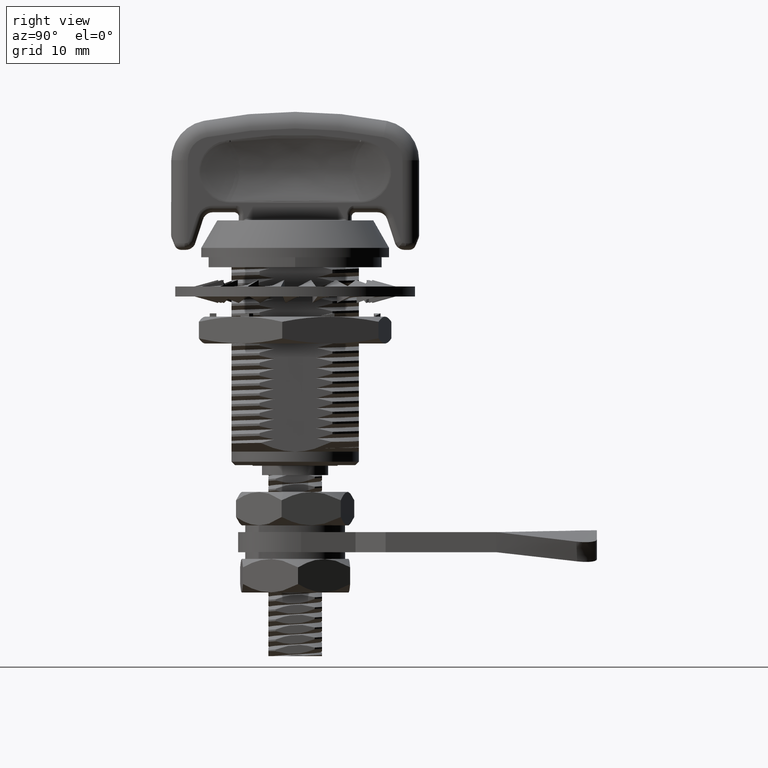
[diagram: clean part render]
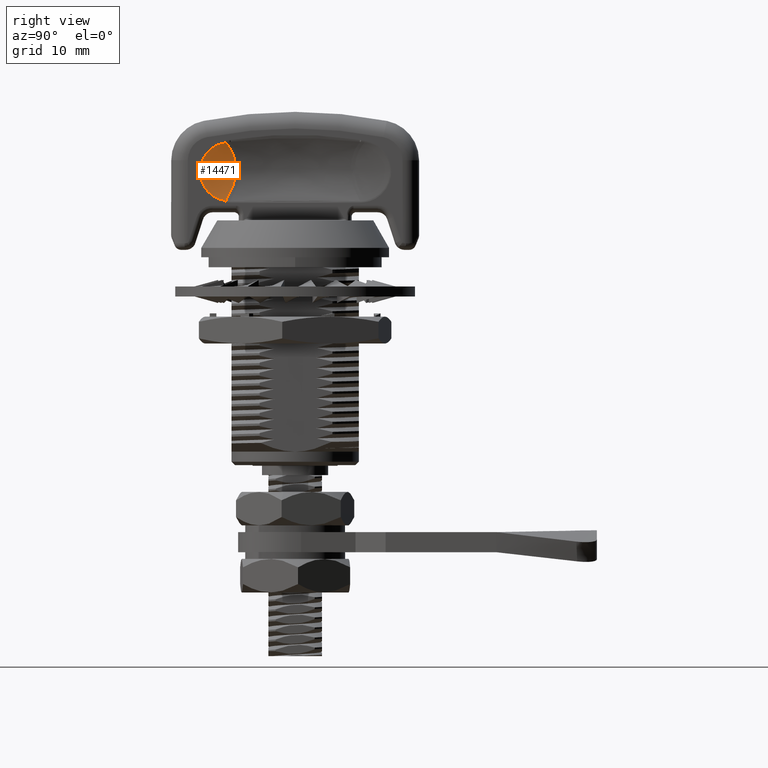
[diagram: same view with one face highlighted and labeled with its STEP entity id]
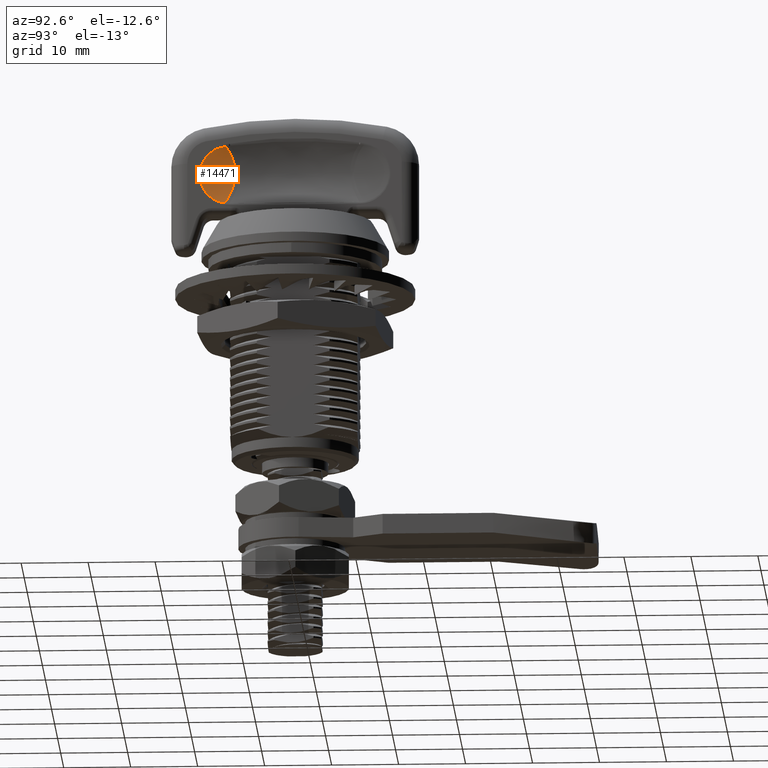
[diagram: same view with one face highlighted and labeled with its STEP entity id]
A machine part, right view. The second image highlights one B-rep face of the part: STEP entity #14471.
A second angle (auxiliary view) of the same face is appended — the face is thin or edge-on in the first view.
In plain terms, the highlighted face is a freeform B-spline surface patch.
Its self-contained STEP definition (entity closure, byte-faithful):
#383=B_SPLINE_SURFACE_WITH_KNOTS('',3,3,((#61968,#61969,#61970,#61971,#61972,
#61973,#61974),(#61975,#61976,#61977,#61978,#61979,#61980,#61981),(#61982,
#61983,#61984,#61985,#61986,#61987,#61988),(#61989,#61990,#61991,#61992,
#61993,#61994,#61995),(#61996,#61997,#61998,#61999,#62000,#62001,#62002)),
 .UNSPECIFIED.,.F.,.F.,.F.,(4,1,4),(4,1,1,1,4),(-0.06344039982555,0.464069123009,
1.075586105328),(0.8083778313412,0.8576923394216,0.9051282262811,0.9525641131405,
0.9986401174064),.UNSPECIFIED.);
#1130=B_SPLINE_CURVE_WITH_KNOTS('',3,(#61812,#61813,#61814,#61815,#61816,
#61817,#61818,#61819,#61820,#61821,#61822,#61823,#61824,#61825,#61826,#61827,
#61828,#61829,#61830,#61831,#61832,#61833,#61834,#61835,#61836,#61837,#61838,
#61839,#61840,#61841,#61842,#61843,#61844,#61845,#61846,#61847,#61848,#61849,
#61850,#61851,#61852,#61853,#61854,#61855,#61856,#61857,#61858,#61859,#61860,
#61861,#61862,#61863,#61864,#61865,#61866,#61867,#61868,#61869,#61870,#61871,
#61872,#61873,#61874,#61875,#61876,#61877,#61878,#61879,#61880,#61881,#61882,
#61883,#61884,#61885,#61886,#61887,#61888,#61889,#61890,#61891,#61892,#61893,
#61894,#61895,#61896,#61897,#61898,#61899,#61900,#61901,#61902,#61903,#61904,
#61905,#61906,#61907,#61908,#61909,#61910,#61911,#61912,#61913,#61914,#61915,
#61916,#61917,#61918,#61919,#61920,#61921,#61922,#61923,#61924,#61925,#61926,
#61927,#61928,#61929,#61930,#61931,#61932,#61933,#61934,#61935,#61936,#61937,
#61938,#61939,#61940,#61941,#61942,#61943,#61944,#61945,#61946,#61947,#61948,
#61949,#61950,#61951,#61952,#61953,#61954,#61955,#61956,#61957,#61958,#61959,
#61960,#61961,#61962,#61963,#61964,#61965,#61966,#61967),.UNSPECIFIED.,
 .F.,.F.,(4,2,2,2,2,2,2,2,2,2,2,2,2,2,2,2,2,2,2,2,2,2,2,2,2,2,2,2,2,2,2,
2,2,2,2,2,2,2,2,2,2,2,2,2,2,2,2,2,2,2,2,2,2,2,2,2,2,2,2,2,2,2,2,2,2,2,2,
2,2,2,2,2,2,2,2,2,2,4),(0.,0.0454689397837129,0.0861078008048689,0.122808244131058,
0.156103353441468,0.186298875036485,0.213702191991193,0.23865316114838,
0.25,0.261424670059077,0.282245431578178,0.301344525589447,0.318922357128044,
0.335095637690876,0.349938551172448,0.36355794037992,0.376064830129451,
0.387538418519536,0.398047168283577,0.407658681172791,0.416425501433452,
0.42437185417443,0.431512215100143,0.43789812548004,0.443640133135429,0.44887575383834,
0.453744619479317,0.458338723825387,0.462630964699474,0.466551825462234,
0.470129972689245,0.473478748656265,0.476718922912879,0.479936080930694,
0.48316751789521,0.486409049838365,0.489654281874576,0.492895062589774,
0.494875592982279,0.496050645598402,0.497942541080052,0.498968878099393,
0.5,0.502102280752797,0.505682055666872,0.509799931291536,0.514519065100934,
0.519849832620355,0.525665271661527,0.531768454791741,0.538055646940328,
0.544535386883235,0.551336988641503,0.558678716414874,0.566807999453519,
0.576006806938041,0.586426155043493,0.597624691975108,0.608867758205821,
0.619882070396659,0.63085219125014,0.642348422442549,0.654993124877327,
0.668919812635162,0.682192528751562,0.684072491976628,0.700592977958545,
0.71866524576158,0.738525978856102,0.75,0.760463093889804,0.784761133354014,
0.811762855759767,0.841762654789106,0.875041737160088,0.912131098246544,
0.953605496027919,1.),.UNSPECIFIED.);
#1131=B_SPLINE_CURVE_WITH_KNOTS('',3,(#62003,#62004,#62005,#62006,#62007,
#62008,#62009),.UNSPECIFIED.,.F.,.F.,(4,3,4),(0.,0.466821804406758,1.),
 .UNSPECIFIED.);
#3774=FACE_OUTER_BOUND('',#4652,.T.);
#4652=EDGE_LOOP('',(#11002,#11003));
#6118=VERTEX_POINT('',#60668);
#6125=VERTEX_POINT('',#61500);
#7891=EDGE_CURVE('',#6125,#6118,#1130,.T.);
#7892=EDGE_CURVE('',#6125,#6118,#1131,.T.);
#11002=ORIENTED_EDGE('',*,*,#7891,.F.);
#11003=ORIENTED_EDGE('',*,*,#7892,.T.);
#14471=ADVANCED_FACE('',(#3774),#383,.T.);
#60668=CARTESIAN_POINT('',(2.440794680745,49.07803024389,10.29761731653));
#61500=CARTESIAN_POINT('',(2.463199448987,40.44198037528,10.35715558005));
#61812=CARTESIAN_POINT('Ctrl Pts',(2.46319944898507,40.4419803752795,10.3571555800501));
#61813=CARTESIAN_POINT('Ctrl Pts',(2.46568179726904,40.4645801271253,10.5459736818584));
#61814=CARTESIAN_POINT('Ctrl Pts',(2.46777263337933,40.5000788655586,10.7338730633001));
#61815=CARTESIAN_POINT('Ctrl Pts',(2.47122486459435,40.590782273944,11.0841020718612));
#61816=CARTESIAN_POINT('Ctrl Pts',(2.47264022867254,40.6434926603211,11.2470270848696));
#61817=CARTESIAN_POINT('Ctrl Pts',(2.4750331559204,40.7619228901347,11.5503269103786));
#61818=CARTESIAN_POINT('Ctrl Pts',(2.47603987856238,40.8258866791158,11.6913567424074));
#61819=CARTESIAN_POINT('Ctrl Pts',(2.47775941524503,40.9621761413044,11.953055718751));
#61820=CARTESIAN_POINT('Ctrl Pts',(2.47849084355857,41.0331750656802,12.0743998284419));
#61821=CARTESIAN_POINT('Ctrl Pts',(2.47975036500777,41.1795857265726,12.2987722992952));
#61822=CARTESIAN_POINT('Ctrl Pts',(2.48029105295589,41.2539712154123,12.4024540871534));
#61823=CARTESIAN_POINT('Ctrl Pts',(2.48123013272681,41.4042745783411,12.5936478533585));
#61824=CARTESIAN_POINT('Ctrl Pts',(2.48163706068153,41.4794146324992,12.681768507331));
#61825=CARTESIAN_POINT('Ctrl Pts',(2.48234698989715,41.6294361011437,12.844121952294));
#61826=CARTESIAN_POINT('Ctrl Pts',(2.48265603334104,41.7037388559464,12.9188918608786));
#61827=CARTESIAN_POINT('Ctrl Pts',(2.48306559646956,41.8156333612743,13.0235267123506));
#61828=CARTESIAN_POINT('Ctrl Pts',(2.48318793783563,41.8511524264803,13.0556477779531));
#61829=CARTESIAN_POINT('Ctrl Pts',(2.48342262362077,41.9234814803366,13.1188979363325));
#61830=CARTESIAN_POINT('Ctrl Pts',(2.48353993002328,41.9602884954351,13.1500458674831));
#61831=CARTESIAN_POINT('Ctrl Pts',(2.48386854693632,42.0656009162862,13.2362593438641));
#61832=CARTESIAN_POINT('Ctrl Pts',(2.484077801996,42.1352799979252,13.2899272986887));
#61833=CARTESIAN_POINT('Ctrl Pts',(2.4844682125353,42.2718554438086,13.3888134751126));
#61834=CARTESIAN_POINT('Ctrl Pts',(2.48465026610974,42.3385054643573,13.4343633685214));
#61835=CARTESIAN_POINT('Ctrl Pts',(2.48498632810036,42.4688307336696,13.518304515741));
#61836=CARTESIAN_POINT('Ctrl Pts',(2.48514141916923,42.5323200694194,13.5569769335652));
#61837=CARTESIAN_POINT('Ctrl Pts',(2.48542418399634,42.6560594524653,13.6281236868693));
#61838=CARTESIAN_POINT('Ctrl Pts',(2.48555306104334,42.7161629597237,13.6608463339922));
#61839=CARTESIAN_POINT('Ctrl Pts',(2.485784553901,42.8328627848206,13.720876851659));
#61840=CARTESIAN_POINT('Ctrl Pts',(2.48588845991489,42.8893409108713,13.7484086975019));
#61841=CARTESIAN_POINT('Ctrl Pts',(2.486072134387,42.9987610894734,13.798834486528));
#61842=CARTESIAN_POINT('Ctrl Pts',(2.48615318777997,43.0516108494284,13.8219236480882));
#61843=CARTESIAN_POINT('Ctrl Pts',(2.48629331536107,43.1538617311123,13.8641597047071));
#61844=CARTESIAN_POINT('Ctrl Pts',(2.48635364533251,43.2031919166628,13.8834745561762));
#61845=CARTESIAN_POINT('Ctrl Pts',(2.48645514873709,43.2984548607743,13.9187325998432));
#61846=CARTESIAN_POINT('Ctrl Pts',(2.48649749381401,43.3443315853813,13.9348225066047));
#61847=CARTESIAN_POINT('Ctrl Pts',(2.48656656520335,43.4327521964525,13.964143703402));
#61848=CARTESIAN_POINT('Ctrl Pts',(2.48659430552526,43.4752519224248,13.9775015966953));
#61849=CARTESIAN_POINT('Ctrl Pts',(2.48663624035692,43.5570204176844,14.0017980069744));
#61850=CARTESIAN_POINT('Ctrl Pts',(2.48665138938787,43.5962552312145,14.0128457130568));
#61851=CARTESIAN_POINT('Ctrl Pts',(2.48667030810227,43.6715780460385,14.0328906108795));
#61852=CARTESIAN_POINT('Ctrl Pts',(2.4866749609127,43.7076395674183,14.0419826808835));
#61853=CARTESIAN_POINT('Ctrl Pts',(2.4866748258029,43.7766135907561,14.0584113909834));
#61854=CARTESIAN_POINT('Ctrl Pts',(2.48667088068935,43.8095049493615,14.0658326828321));
#61855=CARTESIAN_POINT('Ctrl Pts',(2.48665545262526,43.8721185066106,14.0791756521848));
#61856=CARTESIAN_POINT('Ctrl Pts',(2.48664477480714,43.9018237669268,14.0851730847081));
#61857=CARTESIAN_POINT('Ctrl Pts',(2.48661765979449,43.9582171321075,14.0959274034088));
#61858=CARTESIAN_POINT('Ctrl Pts',(2.48660195032113,43.9848923980388,14.1007484100366));
#61859=CARTESIAN_POINT('Ctrl Pts',(2.4865661669688,44.0356412750535,14.1094137791253));
#61860=CARTESIAN_POINT('Ctrl Pts',(2.48654669286354,44.0597060062804,14.113307602903));
#61861=CARTESIAN_POINT('Ctrl Pts',(2.48650423901523,44.1057780100976,14.1203495328392));
#61862=CARTESIAN_POINT('Ctrl Pts',(2.48648171988934,44.1277795669617,14.1235331196889));
#61863=CARTESIAN_POINT('Ctrl Pts',(2.48643351090529,44.1702906382474,14.1293370178209));
#61864=CARTESIAN_POINT('Ctrl Pts',(2.48640815366984,44.1907967083367,14.1319811646772));
#61865=CARTESIAN_POINT('Ctrl Pts',(2.48635435834831,44.2306902896325,14.1368215149649));
#61866=CARTESIAN_POINT('Ctrl Pts',(2.4863261749001,44.2500756197536,14.1390345763095));
#61867=CARTESIAN_POINT('Ctrl Pts',(2.48626724988637,44.2876033904511,14.1430482552572));
#61868=CARTESIAN_POINT('Ctrl Pts',(2.48623679811197,44.3057438033106,14.1448664185793));
#61869=CARTESIAN_POINT('Ctrl Pts',(2.48617427335994,44.340479138286,14.1481125596168));
#61870=CARTESIAN_POINT('Ctrl Pts',(2.48614256864627,44.3570719764128,14.1495606862328));
#61871=CARTESIAN_POINT('Ctrl Pts',(2.4860779139012,44.3888257036126,14.1521339665252));
#61872=CARTESIAN_POINT('Ctrl Pts',(2.48604531497149,44.4039849847547,14.1532762866982));
#61873=CARTESIAN_POINT('Ctrl Pts',(2.48597832037566,44.4333462989199,14.1553199961399));
#61874=CARTESIAN_POINT('Ctrl Pts',(2.48594417387841,44.4475474013185,14.1562321358264));
#61875=CARTESIAN_POINT('Ctrl Pts',(2.48587296362596,44.4755017249288,14.1578753411269));
#61876=CARTESIAN_POINT('Ctrl Pts',(2.4858360304765,44.4892545351387,14.1586113197084));
#61877=CARTESIAN_POINT('Ctrl Pts',(2.48575783419283,44.5166747248023,14.1599314778251));
#61878=CARTESIAN_POINT('Ctrl Pts',(2.48571660373477,44.5303420157381,14.1605166984881));
#61879=CARTESIAN_POINT('Ctrl Pts',(2.48562854467889,44.5577523815208,14.1615422290339));
#61880=CARTESIAN_POINT('Ctrl Pts',(2.48558169244031,44.5714955238738,14.1619818842247));
#61881=CARTESIAN_POINT('Ctrl Pts',(2.48548049768411,44.5990415398137,14.1627070840361));
#61882=CARTESIAN_POINT('Ctrl Pts',(2.48542613125013,44.612844453042,14.1629921426106));
#61883=CARTESIAN_POINT('Ctrl Pts',(2.4853108083087,44.6405076775062,14.1634217287246));
#61884=CARTESIAN_POINT('Ctrl Pts',(2.48524984681708,44.6543680668295,14.1635660954506));
#61885=CARTESIAN_POINT('Ctrl Pts',(2.48511602140848,44.6820793958911,14.1636893078379));
#61886=CARTESIAN_POINT('Ctrl Pts',(2.48504314961587,44.6959302185823,14.163668376969));
#61887=CARTESIAN_POINT('Ctrl Pts',(2.48495879374188,44.7183702842406,14.1637804589406));
#61888=CARTESIAN_POINT('Ctrl Pts',(2.48493446796793,44.7269112400615,14.1638567751483));
#61889=CARTESIAN_POINT('Ctrl Pts',(2.48490119372481,44.7402660478128,14.1639506757236));
#61890=CARTESIAN_POINT('Ctrl Pts',(2.48489054165235,44.7453010464853,14.1639850392131));
#61891=CARTESIAN_POINT('Ctrl Pts',(2.48486770918472,44.7583429311813,14.1640528319078));
#61892=CARTESIAN_POINT('Ctrl Pts',(2.48485854394166,44.7662822107849,14.1640719755034));
#61893=CARTESIAN_POINT('Ctrl Pts',(2.48485128855807,44.7785553879131,14.1640381418019));
#61894=CARTESIAN_POINT('Ctrl Pts',(2.48485003940194,44.7828784692608,14.1640142661488));
#61895=CARTESIAN_POINT('Ctrl Pts',(2.48485014989819,44.7915968554056,14.1639404958051));
#61896=CARTESIAN_POINT('Ctrl Pts',(2.48485155465301,44.7959918519803,14.1638907574786));
#61897=CARTESIAN_POINT('Ctrl Pts',(2.48486804280085,44.8092526718536,14.1637697877005));
#61898=CARTESIAN_POINT('Ctrl Pts',(2.48487916014884,44.8183350285913,14.1636301138854));
#61899=CARTESIAN_POINT('Ctrl Pts',(2.48495064853365,44.8429569401615,14.1634551147855));
#61900=CARTESIAN_POINT('Ctrl Pts',(2.48503998200297,44.8585489207294,14.16356181932));
#61901=CARTESIAN_POINT('Ctrl Pts',(2.48520498249053,44.8919411703209,14.1635180454688));
#61902=CARTESIAN_POINT('Ctrl Pts',(2.48527674031015,44.9097217008157,14.1633267494859));
#61903=CARTESIAN_POINT('Ctrl Pts',(2.48541474889831,44.9478139209039,14.1626363955633));
#61904=CARTESIAN_POINT('Ctrl Pts',(2.48547864289746,44.968115948609,14.1620964493039));
#61905=CARTESIAN_POINT('Ctrl Pts',(2.48559474660266,45.01128170245,14.160561766819));
#61906=CARTESIAN_POINT('Ctrl Pts',(2.48564437585209,45.0341364017592,14.1595171773924));
#61907=CARTESIAN_POINT('Ctrl Pts',(2.48573153026282,45.0818537688413,14.1568885126369));
#61908=CARTESIAN_POINT('Ctrl Pts',(2.48576753802879,45.1067100423622,14.1552640141186));
#61909=CARTESIAN_POINT('Ctrl Pts',(2.48582559675719,45.1575694529088,14.1514324959522));
#61910=CARTESIAN_POINT('Ctrl Pts',(2.48584686737583,45.1835684764398,14.1492006311335));
#61911=CARTESIAN_POINT('Ctrl Pts',(2.48587587730461,45.2362556087533,14.1441387331464));
#61912=CARTESIAN_POINT('Ctrl Pts',(2.4858831877223,45.2629408558633,14.1412926931118));
#61913=CARTESIAN_POINT('Ctrl Pts',(2.485884942604,45.3170210533081,14.1349629676261));
#61914=CARTESIAN_POINT('Ctrl Pts',(2.48587898537921,45.3444127084784,14.1314624237817));
#61915=CARTESIAN_POINT('Ctrl Pts',(2.48585435622971,45.4004333876467,14.12370967563));
#61916=CARTESIAN_POINT('Ctrl Pts',(2.48583506685854,45.4290562886524,14.1194287729281));
#61917=CARTESIAN_POINT('Ctrl Pts',(2.48578255123487,45.488428059173,14.1098939580116));
#61918=CARTESIAN_POINT('Ctrl Pts',(2.48574833938417,45.5191652500955,14.104589776685));
#61919=CARTESIAN_POINT('Ctrl Pts',(2.48566318376105,45.5837518569705,14.0926798711618));
#61920=CARTESIAN_POINT('Ctrl Pts',(2.48561083817042,45.6175814228745,14.0859955706552));
#61921=CARTESIAN_POINT('Ctrl Pts',(2.48548497871421,45.6894470336645,14.070858043853));
#61922=CARTESIAN_POINT('Ctrl Pts',(2.48540958474193,45.727450927401,14.0622878019571));
#61923=CARTESIAN_POINT('Ctrl Pts',(2.48523304815677,45.8081680925001,14.0428962819717));
#61924=CARTESIAN_POINT('Ctrl Pts',(2.48512981412429,45.8508371422301,14.0319272288472));
#61925=CARTESIAN_POINT('Ctrl Pts',(2.48489942327838,45.9389233745833,14.0078125052785));
#61926=CARTESIAN_POINT('Ctrl Pts',(2.48477105189667,45.9843074345711,13.9945654275135));
#61927=CARTESIAN_POINT('Ctrl Pts',(2.48449975246166,46.0747327369589,13.9665426047682));
#61928=CARTESIAN_POINT('Ctrl Pts',(2.48435676666801,46.1197719101011,13.9517609973837));
#61929=CARTESIAN_POINT('Ctrl Pts',(2.48406398206722,46.2083834153065,13.9210649185052));
#61930=CARTESIAN_POINT('Ctrl Pts',(2.48391438111375,46.2519669436494,13.9051796221776));
#61931=CARTESIAN_POINT('Ctrl Pts',(2.48360988015646,46.3384103311416,13.8721102393757));
#61932=CARTESIAN_POINT('Ctrl Pts',(2.48345500287718,46.3812724062198,13.8549316242229));
#61933=CARTESIAN_POINT('Ctrl Pts',(2.48313620331152,46.4684837044554,13.8184030105149));
#61934=CARTESIAN_POINT('Ctrl Pts',(2.4829722021687,46.5128056801267,13.7989884010656));
#61935=CARTESIAN_POINT('Ctrl Pts',(2.48263185678109,46.6052201326027,13.7567498019253));
#61936=CARTESIAN_POINT('Ctrl Pts',(2.48245591481616,46.6532469429091,13.7337790232696));
#61937=CARTESIAN_POINT('Ctrl Pts',(2.48209891710791,46.7533569832042,13.683784382581));
#61938=CARTESIAN_POINT('Ctrl Pts',(2.48191915173325,46.8053578110568,13.6565857889769));
#61939=CARTESIAN_POINT('Ctrl Pts',(2.48159240407713,46.9059827061659,13.6015822688083));
#61940=CARTESIAN_POINT('Ctrl Pts',(2.48144428563547,46.9546507039038,13.5738657660545));
#61941=CARTESIAN_POINT('Ctrl Pts',(2.48129320427648,47.0097078407172,13.5412492004097));
#61942=CARTESIAN_POINT('Ctrl Pts',(2.48127431577412,47.0165271904328,13.5371841971924));
#61943=CARTESIAN_POINT('Ctrl Pts',(2.48108797119971,47.0831592737369,13.4972183101332));
#61944=CARTESIAN_POINT('Ctrl Pts',(2.48090908253973,47.1420889640289,13.4599233893891));
#61945=CARTESIAN_POINT('Ctrl Pts',(2.48050081868135,47.2634539999559,13.3789322282151));
#61946=CARTESIAN_POINT('Ctrl Pts',(2.48026829211039,47.3256987497609,13.3349637062991));
#61947=CARTESIAN_POINT('Ctrl Pts',(2.47972605024448,47.4536996552913,13.2392840678454));
#61948=CARTESIAN_POINT('Ctrl Pts',(2.47941100045752,47.5191937946662,13.187237226007));
#61949=CARTESIAN_POINT('Ctrl Pts',(2.47884857295929,47.6198918071249,13.1021235849351));
#61950=CARTESIAN_POINT('Ctrl Pts',(2.47862878263631,47.6562076971327,13.0703228642854));
#61951=CARTESIAN_POINT('Ctrl Pts',(2.47817833285633,47.7245356065809,13.0083384229646));
#61952=CARTESIAN_POINT('Ctrl Pts',(2.47795540467259,47.7566688211867,12.9782701549286));
#61953=CARTESIAN_POINT('Ctrl Pts',(2.47718694840834,47.8618639938562,12.8767471734522));
#61954=CARTESIAN_POINT('Ctrl Pts',(2.47660462104228,47.9328634197713,12.8031392381443));
#61955=CARTESIAN_POINT('Ctrl Pts',(2.47526959560808,48.0770386936283,12.6426312261746));
#61956=CARTESIAN_POINT('Ctrl Pts',(2.4745051473781,48.1495775966207,12.5551634732394));
#61957=CARTESIAN_POINT('Ctrl Pts',(2.47274253074031,48.2951570756542,12.3648424590349));
#61958=CARTESIAN_POINT('Ctrl Pts',(2.47172783114956,48.3673589988446,12.2613592319307));
#61959=CARTESIAN_POINT('Ctrl Pts',(2.46936417791035,48.5096371883068,12.0369900371309));
#61960=CARTESIAN_POINT('Ctrl Pts',(2.46799079561078,48.5786182192466,11.9154383309588));
#61961=CARTESIAN_POINT('Ctrl Pts',(2.4647591272936,48.7113811506431,11.6520855129619));
#61962=CARTESIAN_POINT('Ctrl Pts',(2.46286329223989,48.7736632915009,11.5095594881549));
#61963=CARTESIAN_POINT('Ctrl Pts',(2.45835734400663,48.8888180753262,11.2018049592648));
#61964=CARTESIAN_POINT('Ctrl Pts',(2.45568920903719,48.9397074242146,11.0358848943343));
#61965=CARTESIAN_POINT('Ctrl Pts',(2.44922912622431,49.0258432652588,10.6797410580142));
#61966=CARTESIAN_POINT('Ctrl Pts',(2.44534120971434,49.058517557792,10.4889699013117));
#61967=CARTESIAN_POINT('Ctrl Pts',(2.44079468074294,49.0780302438908,10.2976173165301));
#61968=CARTESIAN_POINT('Ctrl Pts',(2.704482701144,39.6982177974,10.79173295943));
#61969=CARTESIAN_POINT('Ctrl Pts',(2.691077680274,39.78324866019,11.36105648439));
#61970=CARTESIAN_POINT('Ctrl Pts',(2.662683001814,40.17957915047,12.44243192236));
#61971=CARTESIAN_POINT('Ctrl Pts',(2.614255824901,41.36094254478,13.69026991045));
#61972=CARTESIAN_POINT('Ctrl Pts',(2.561072977897,42.93731565013,14.36449955703));
#61973=CARTESIAN_POINT('Ctrl Pts',(2.521976863517,44.12969918062,14.37089821981));
#61974=CARTESIAN_POINT('Ctrl Pts',(2.501789808806,44.71816202818,14.26010753164));
#61975=CARTESIAN_POINT('Ctrl Pts',(2.106565912415,41.39889406721,9.556078458219));
#61976=CARTESIAN_POINT('Ctrl Pts',(2.132358068906,41.46041520914,10.06177534963));
#61977=CARTESIAN_POINT('Ctrl Pts',(2.186991231084,41.73003093258,11.04000588484));
#61978=CARTESIAN_POINT('Ctrl Pts',(2.280167725978,42.51558809976,12.3602612636));
#61979=CARTESIAN_POINT('Ctrl Pts',(2.38249381234,43.55818086202,13.44542302703));
#61980=CARTESIAN_POINT('Ctrl Pts',(2.457715964216,44.34633505971,13.99955529468));
#61981=CARTESIAN_POINT('Ctrl Pts',(2.496556363329,44.73578245952,14.22973184675));
#61982=CARTESIAN_POINT('Ctrl Pts',(1.371128121941,45.15970418435,8.134506218861));
#61983=CARTESIAN_POINT('Ctrl Pts',(1.445127613491,45.15281189831,8.567381623758));
#61984=CARTESIAN_POINT('Ctrl Pts',(1.60187582378,45.12188694632,9.427736099231));
#61985=CARTESIAN_POINT('Ctrl Pts',(1.86921772443,45.03107486758,10.83201965367));
#61986=CARTESIAN_POINT('Ctrl Pts',(2.162822572953,44.91040463874,12.38973274257));
#61987=CARTESIAN_POINT('Ctrl Pts',(2.378666618568,44.8192469477,13.57307299794));
#61988=CARTESIAN_POINT('Ctrl Pts',(2.490118532649,44.77425123624,14.1948459554));
#61989=CARTESIAN_POINT('Ctrl Pts',(2.038447890149,48.39803339158,9.404482572816));
#61990=CARTESIAN_POINT('Ctrl Pts',(2.068705639949,48.33133693736,9.903947603601));
#61991=CARTESIAN_POINT('Ctrl Pts',(2.132797854089,48.04070882658,10.87280183787));
#61992=CARTESIAN_POINT('Ctrl Pts',(2.242106674346,47.19557246072,12.20491474029));
#61993=CARTESIAN_POINT('Ctrl Pts',(2.362149190789,46.07424062266,13.33961803842));
#61994=CARTESIAN_POINT('Ctrl Pts',(2.450395054908,45.22641549619,13.95704691019));
#61995=CARTESIAN_POINT('Ctrl Pts',(2.495960144198,44.80737263501,14.22625538458));
#61996=CARTESIAN_POINT('Ctrl Pts',(2.746380828076,49.74660484101,10.86210677552));
#61997=CARTESIAN_POINT('Ctrl Pts',(2.730229139764,49.66595197334,11.43750564496));
#61998=CARTESIAN_POINT('Ctrl Pts',(2.696016438083,49.28086638423,12.52986072487));
#61999=CARTESIAN_POINT('Ctrl Pts',(2.637666617487,48.12259363879,13.77820462793));
#62000=CARTESIAN_POINT('Ctrl Pts',(2.573586705415,46.57317886098,14.42767011015));
#62001=CARTESIAN_POINT('Ctrl Pts',(2.52647987653,45.40029286892,14.39679690226));
#62002=CARTESIAN_POINT('Ctrl Pts',(2.502156536854,44.82151449452,14.26222712966));
#62003=CARTESIAN_POINT('Ctrl Pts',(2.46319944898171,40.4419803752786,10.3571555800502));
#62004=CARTESIAN_POINT('Ctrl Pts',(2.01858534302851,41.9031401496364,9.43561542827679));
#62005=CARTESIAN_POINT('Ctrl Pts',(1.76582057619061,43.3777151888465,8.93994547004258));
#62006=CARTESIAN_POINT('Ctrl Pts',(1.7320516612542,44.7702670984128,8.87014561003364));
#62007=CARTESIAN_POINT('Ctrl Pts',(1.69348266348466,46.3607633164633,8.79042404805665));
#62008=CARTESIAN_POINT('Ctrl Pts',(1.94059271213905,47.8442607544443,9.26624799755929));
#62009=CARTESIAN_POINT('Ctrl Pts',(2.44079468073899,49.0780302438921,10.2976173165304));